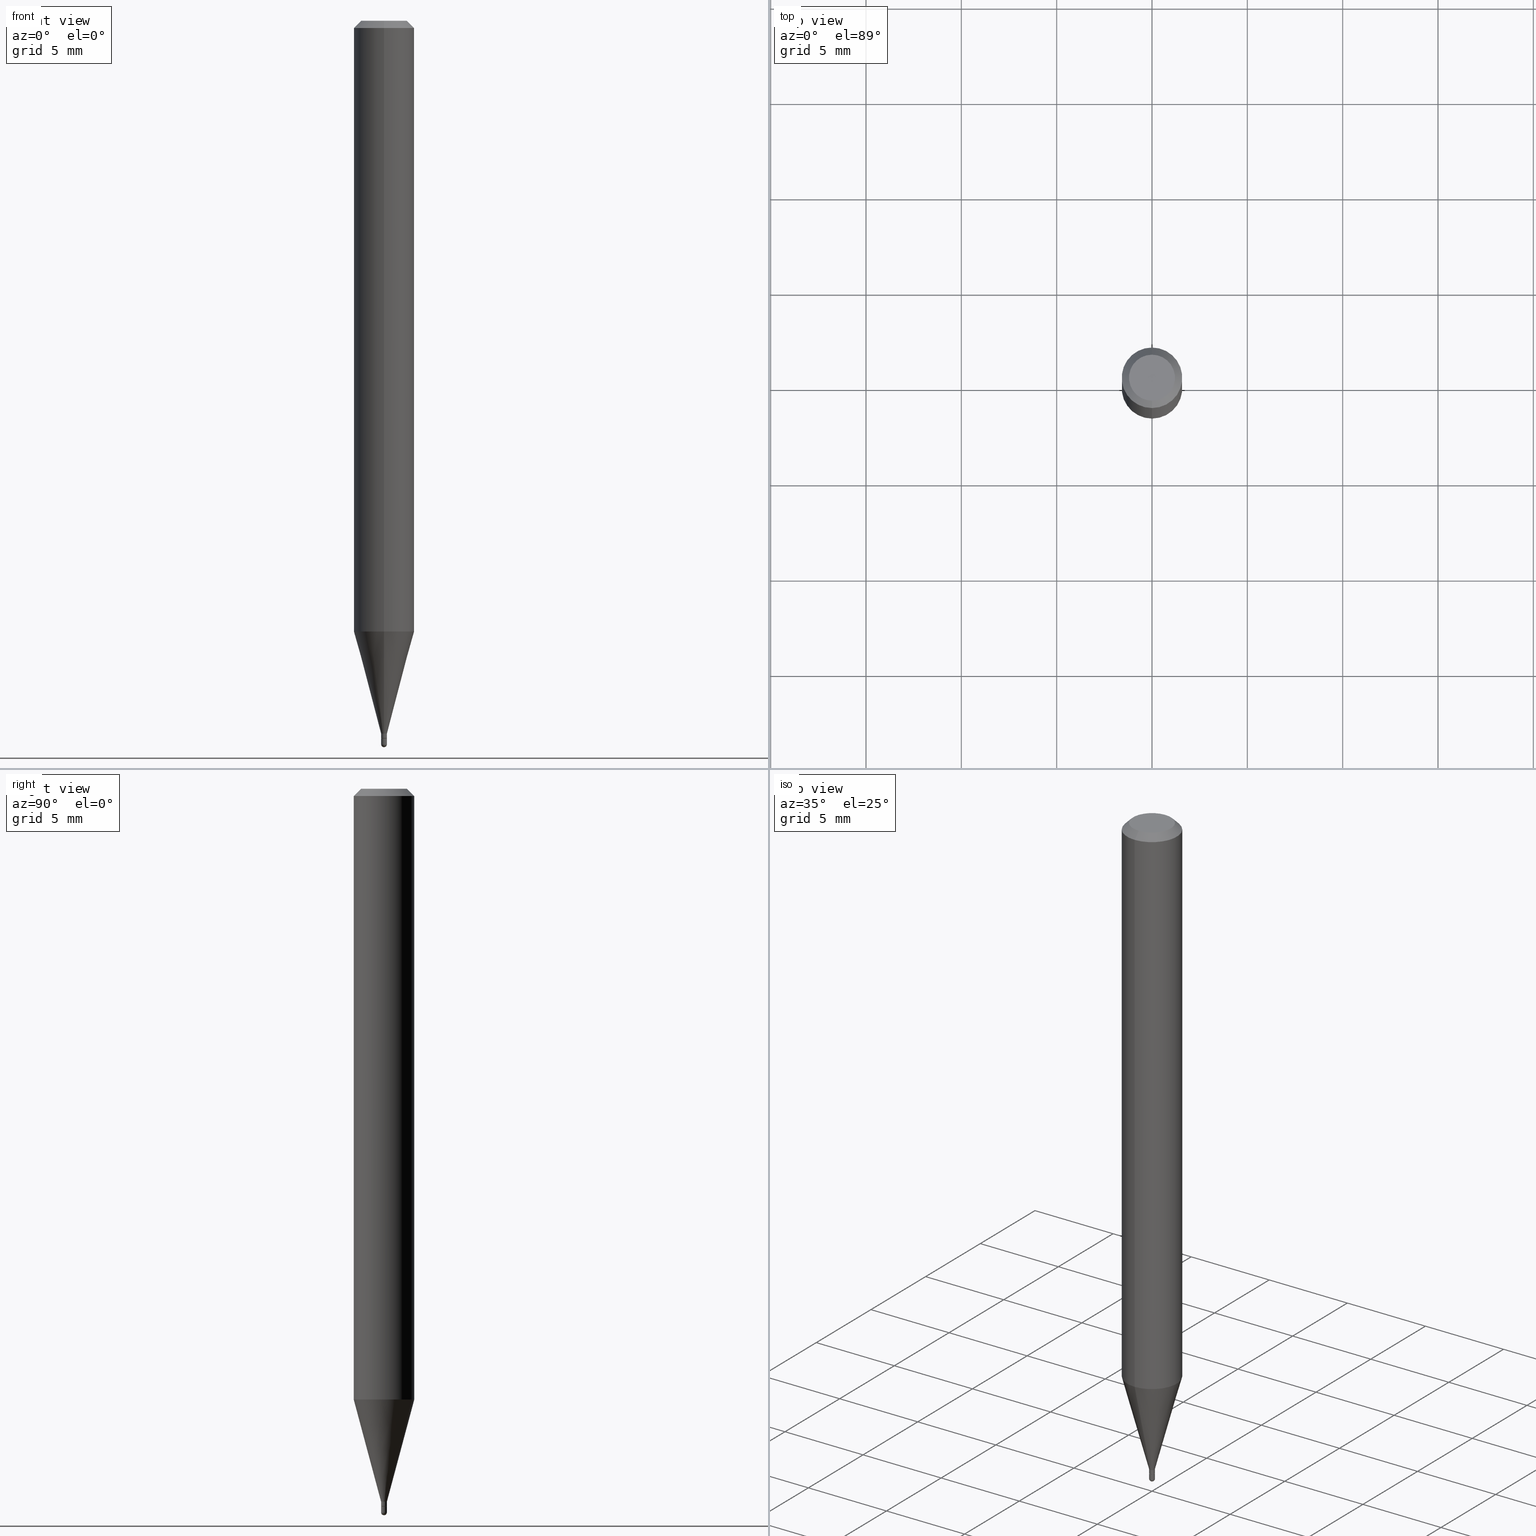
[diagram: canonical four-view strip — front | top / right | iso, engineering-drawing reading convention]
A machine part, canonical four-view strip (front | top / right | iso — engineering-drawing reading convention). The complete STEP part file that produces these views, byte-faithful:
ISO-10303-21;
HEADER;
FILE_DESCRIPTION (( 'STEP AP203' ),
    '1' );
FILE_NAME ('00747.STEP',
    '2024-03-07T18:11:06',
    ( '' ),
    ( '' ),
    'SwSTEP 2.0',
    'SolidWorks 2023',
    '' );
FILE_SCHEMA (( 'CONFIG_CONTROL_DESIGN' ));
ENDSEC;

DATA;
#1 = CARTESIAN_POINT ( 'NONE',  ( 3.624205907344433687E-29, -5.174345075382739787E-15, -1.482000000000000206 ) ) ;
#2 = APPROVAL_ROLE ( '' ) ;
#3 = ORIENTED_EDGE ( 'NONE', *, *, #464, .T. ) ;
#4 = AXIS2_PLACEMENT_3D ( 'NONE', #488, #289, #101 ) ;
#5 = COORDINATED_UNIVERSAL_TIME_OFFSET ( 5, 0, .BEHIND. ) ;
#6 = PRODUCT_DEFINITION ( 'UNKNOWN', '', #495, #451 ) ;
#7 = ORIENTED_EDGE ( 'NONE', *, *, #195, .T. ) ;
#8 = ORIENTED_EDGE ( 'NONE', *, *, #40, .F. ) ;
#9 = CARTESIAN_POINT ( 'NONE',  ( 3.840629472727447874E-16, 0.04749999999999999362, -1.747056831868805136E-16 ) ) ;
#10 = CARTESIAN_POINT ( 'NONE',  ( -4.189777606608105530E-17, -0.006000000000005062048, -1.471999999999999975 ) ) ;
#11 = DIRECTION ( 'NONE',  ( -2.445468806185136597E-29, 3.491481338843145583E-15, 1.000000000000000000 ) ) ;
#12 = CLOSED_SHELL ( 'NONE', ( #35, #309, #364, #476, #151, #376, #21, #169, #285, #188, #439, #294 ) ) ;
#13 = DIRECTION ( 'NONE',  ( 1.000000000000000000, -6.982962677686266711E-15, 4.876176775795935232E-29 ) ) ;
#14 = AXIS2_PLACEMENT_3D ( 'NONE', #51, #206, #147 ) ;
#15 = VERTEX_POINT ( 'NONE', #465 ) ;
#16 = EDGE_CURVE ( 'NONE', #353, #105, #60, .T. ) ;
#17 = CARTESIAN_POINT ( 'NONE',  ( 0.000000000000000000, 0.000000000000000000, 0.000000000000000000 ) ) ;
#18 = CARTESIAN_POINT ( 'NONE',  ( 2.433608869978675634E-16, 0.005999999999994782944, -1.471999999999999975 ) ) ;
#19 = CARTESIAN_POINT ( 'NONE',  ( 0.000000000000000000, 0.000000000000000000, 0.000000000000000000 ) ) ;
#20 = DIRECTION ( 'NONE',  ( -1.807323732225329745E-15, -0.2588190451025181305, 0.9659258262890689783 ) ) ;
#21 = ADVANCED_FACE ( 'NONE', ( #460 ), #458, .T. ) ;
#22 = FACE_OUTER_BOUND ( 'NONE', #235, .T. ) ;
#23 = EDGE_CURVE ( 'NONE', #15, #92, #410, .T. ) ;
#24 = AXIS2_PLACEMENT_3D ( 'NONE', #354, #436, #391 ) ;
#25 = DIRECTION ( 'NONE',  ( -7.105427357601001070E-15, -1.000000000000000000, 0.000000000000000000 ) ) ;
#26 = DIRECTION ( 'NONE',  ( -2.445483068383558096E-29, 3.491460914563251865E-15, 1.000000000000000000 ) ) ;
#27 = LOCAL_TIME ( 13, 11, 6.000000000000000000, #233 ) ;
#28 = CARTESIAN_POINT ( 'NONE',  ( 2.167013403574659442E-46, -3.093884679772774644E-32, -8.861289745126043681E-18 ) ) ;
#29 = FACE_OUTER_BOUND ( 'NONE', #93, .T. ) ;
#30 = LINE ( 'NONE', #387, #472 ) ;
#31 = DIRECTION ( 'NONE',  ( -2.445483068383558096E-29, 3.491460914563251865E-15, 1.000000000000000000 ) ) ;
#32 = EDGE_CURVE ( 'NONE', #194, #113, #72, .T. ) ;
#33 = CIRCLE ( 'NONE', #487, 0.04749999999999999362 ) ;
#34 = CARTESIAN_POINT ( 'NONE',  ( -0.006000000000000000992, 4.263256414560601820E-17, -2.951361054152944376E-31 ) ) ;
#35 = ADVANCED_FACE ( 'NONE', ( #22 ), #140, .T. ) ;
#36 = DIRECTION ( 'NONE',  ( -2.445468806185136877E-29, 3.491481338843145188E-15, 1.000000000000000000 ) ) ;
#37 = EDGE_LOOP ( 'NONE', ( #298, #245, #427, #412 ) ) ;
#38 = APPROVAL_DATE_TIME ( #168, #417 ) ;
#39 = FACE_OUTER_BOUND ( 'NONE', #362, .T. ) ;
#40 = EDGE_CURVE ( 'NONE', #92, #15, #356, .T. ) ;
#41 = COORDINATED_UNIVERSAL_TIME_OFFSET ( 5, 0, .BEHIND. ) ;
#42 = FACE_OUTER_BOUND ( 'NONE', #365, .T. ) ;
#43 = CALENDAR_DATE ( 2024, 7, 3 ) ;
#44 = ORIENTED_EDGE ( 'NONE', *, *, #433, .F. ) ;
#45 = ADVANCED_FACE ( 'NONE', ( #210 ), #287, .T. ) ;
#46 = AXIS2_PLACEMENT_3D ( 'NONE', #249, #377, #413 ) ;
#47 = AXIS2_PLACEMENT_3D ( 'NONE', #181, #363, #374 ) ;
#48 = ORIENTED_EDGE ( 'NONE', *, *, #286, .F. ) ;
#49 = AXIS2_PLACEMENT_3D ( 'NONE', #90, #135, #279 ) ;
#50 = CARTESIAN_POINT ( 'NONE',  ( 4.364351673553919652E-16, 0.06249999999999995143, -0.01500000000000022669 ) ) ;
#51 = CARTESIAN_POINT ( 'NONE',  ( 3.599751076660597576E-29, -5.139430466237107339E-15, -1.471999999999999975 ) ) ;
#52 = ORIENTED_EDGE ( 'NONE', *, *, #415, .T. ) ;
#53 = CARTESIAN_POINT ( 'NONE',  ( 4.085620730624171480E-17, 0.005499999999994825001, -1.482000000000000206 ) ) ;
#54 = PERSON_AND_ORGANIZATION_ROLE ( 'design_owner' ) ;
#55 = DIRECTION ( 'NONE',  ( -6.982962677686265922E-15, -1.000000000000000000, 3.491460914563251865E-15 ) ) ;
#56 = EDGE_CURVE ( 'NONE', #246, #396, #494, .T. ) ;
#57 = AXIS2_PLACEMENT_3D ( 'NONE', #177, #148, #55 ) ;
#58 = DIRECTION ( 'NONE',  ( -6.982962677686266711E-15, -1.000000000000000000, 3.491460914563251865E-15 ) ) ;
#59 = CIRCLE ( 'NONE', #103, 0.005499999999999999681 ) ;
#60 = LINE ( 'NONE', #336, #302 ) ;
#61 = DIRECTION ( 'NONE',  ( 1.839019923739599921E-15, 0.2588190451025249028, 0.9659258262890670910 ) ) ;
#62 = CARTESIAN_POINT ( 'NONE',  ( 3.653017296667086671E-29, -5.217007908311148520E-15, -1.494000000000000217 ) ) ;
#63 = EDGE_CURVE ( 'NONE', #481, #312, #447, .T. ) ;
#64 = DIRECTION ( 'NONE',  ( -2.445468806185136597E-29, 3.491481338843145583E-15, 1.000000000000000000 ) ) ;
#65 = CIRCLE ( 'NONE', #315, 0.006000000000000000992 ) ;
#66 = CARTESIAN_POINT ( 'NONE',  ( -4.364351673553912750E-16, -0.06250000000000005551, -0.01499999999999979128 ) ) ;
#67 = PRODUCT ( '00747', '00747', '', ( #262 ) ) ;
#68 = DIRECTION ( 'NONE',  ( 6.982962677686265922E-15, 1.000000000000000000, -3.491460914563251865E-15 ) ) ;
#69 = ORIENTED_EDGE ( 'NONE', *, *, #195, .F. ) ;
#70 = FACE_OUTER_BOUND ( 'NONE', #475, .T. ) ;
#71 = ORIENTED_EDGE ( 'NONE', *, *, #388, .F. ) ;
#72 = CIRCLE ( 'NONE', #157, 0.005499999999999999681 ) ;
#73 = CIRCLE ( 'NONE', #144, 0.006000000000000000992 ) ;
#74 = CC_DESIGN_APPROVAL ( #202, ( #371 ) ) ;
#75 = EDGE_CURVE ( 'NONE', #263, #146, #192, .T. ) ;
#76 = APPROVAL_STATUS ( 'not_yet_approved' ) ;
#77 = DATE_TIME_ROLE ( 'classification_date' ) ;
#78 = AXIS2_PLACEMENT_3D ( 'NONE', #19, #180, #493 ) ;
#79 = CONICAL_SURFACE ( 'NONE', #139, 0.005499999999999999681, 0.7853981633974739252 ) ;
#80 = CALENDAR_DATE ( 2024, 7, 3 ) ;
#81 = EDGE_LOOP ( 'NONE', ( #198, #3, #499, #330 ) ) ;
#82 = PERSON_AND_ORGANIZATION_ROLE ( 'classification_officer' ) ;
#83 = ADVANCED_FACE ( 'NONE', ( #107 ), #255, .F. ) ;
#84 = ORIENTED_EDGE ( 'NONE', *, *, #250, .T. ) ;
#85 = CARTESIAN_POINT ( 'NONE',  ( 3.907985046684174009E-17, 0.005499999999994825001, -1.482000000000000206 ) ) ;
#86 = UNCERTAINTY_MEASURE_WITH_UNIT (LENGTH_MEASURE( 1.000000000000000082E-05 ), #484, 'distance_accuracy_value', 'NONE');
#87 = ADVANCED_FACE ( 'NONE', ( #29 ), #102, .T. ) ;
#88 = CARTESIAN_POINT ( 'NONE',  ( -3.773273898774340269E-16, -0.04749999999999999362, 1.569831036966284047E-16 ) ) ;
#89 = EDGE_CURVE ( 'NONE', #438, #203, #358, .T. ) ;
#90 = CARTESIAN_POINT ( 'NONE',  ( 3.653017296667086671E-29, -5.217007908311148520E-15, -1.494000000000000217 ) ) ;
#91 = CARTESIAN_POINT ( 'NONE',  ( 0.000000000000000000, 0.000000000000000000, 0.000000000000000000 ) ) ;
#92 = VERTEX_POINT ( 'NONE', #326 ) ;
#93 = EDGE_LOOP ( 'NONE', ( #205, #223, #239, #500, #328 ) ) ;
#94 = AXIS2_PLACEMENT_3D ( 'NONE', #421, #186, #461 ) ;
#95 = AXIS2_PLACEMENT_3D ( 'NONE', #170, #325, #390 ) ;
#96 = CARTESIAN_POINT ( 'NONE',  ( 3.084094387756085363E-29, -4.403217978029919440E-15, -1.261139129372358836 ) ) ;
#97 = CC_DESIGN_DATE_AND_TIME_ASSIGNMENT ( #434, #191, ( #6 ) ) ;
#98 = ORIENTED_EDGE ( 'NONE', *, *, #511, .F. ) ;
#99 = CARTESIAN_POINT ( 'NONE',  ( 3.624205907344433687E-29, -5.174345075382739787E-15, -1.482000000000000206 ) ) ;
#100 = LINE ( 'NONE', #414, #152 ) ;
#101 = DIRECTION ( 'NONE',  ( 6.982962677686265922E-15, 1.000000000000000000, 0.000000000000000000 ) ) ;
#102 = CYLINDRICAL_SURFACE ( 'NONE', #78, 0.006000000000000000992 ) ;
#103 = AXIS2_PLACEMENT_3D ( 'NONE', #1, #207, #314 ) ;
#104 = FACE_OUTER_BOUND ( 'NONE', #142, .T. ) ;
#105 = VERTEX_POINT ( 'NONE', #486 ) ;
#106 = DIRECTION ( 'NONE',  ( -2.445483068383558096E-29, 3.491460914563251865E-15, 1.000000000000000000 ) ) ;
#107 = FACE_OUTER_BOUND ( 'NONE', #395, .T. ) ;
#108 = FACE_OUTER_BOUND ( 'NONE', #445, .T. ) ;
#109 = CARTESIAN_POINT ( 'NONE',  ( 4.440892098500935790E-16, 0.06249999999999995143, -0.01500000000000022669 ) ) ;
#110 = ORIENTED_EDGE ( 'NONE', *, *, #156, .F. ) ;
#111 = AXIS2_PLACEMENT_3D ( 'NONE', #306, #117, #265 ) ;
#112 = CARTESIAN_POINT ( 'NONE',  ( 4.189777606615392016E-17, 0.005999999999994755188, -1.494000000000000439 ) ) ;
#113 = VERTEX_POINT ( 'NONE', #124 ) ;
#114 = EDGE_CURVE ( 'NONE', #113, #194, #59, .T. ) ;
#115 = CARTESIAN_POINT ( 'NONE',  ( 4.440892098500625669E-16, 0.06250000000000000000, -2.182163071602032416E-16 ) ) ;
#116 = ORIENTED_EDGE ( 'NONE', *, *, #339, .T. ) ;
#117 = DIRECTION ( 'NONE',  ( -2.445483068383558096E-29, 3.491460914563251865E-15, 1.000000000000000000 ) ) ;
#118 = APPLICATION_CONTEXT ( 'configuration controlled 3d designs of mechanical parts and assemblies' ) ;
#119 = CONICAL_SURFACE ( 'NONE', #24, 0.06250000000000000000, 0.7853981633974483900 ) ;
#120 = CIRCLE ( 'NONE', #94, 0.06250000000000000000 ) ;
#121 = CARTESIAN_POINT ( 'NONE',  ( -4.287811248607203282E-16, -0.06250000000000005551, -0.01499999999999979128 ) ) ;
#122 = ORIENTED_EDGE ( 'NONE', *, *, #286, .T. ) ;
#123 = AXIS2_PLACEMENT_3D ( 'NONE', #96, #127, #280 ) ;
#124 = CARTESIAN_POINT ( 'NONE',  ( -3.840629472723821456E-17, -0.005500000000005173494, -1.482000000000000206 ) ) ;
#125 = CARTESIAN_POINT ( 'NONE',  ( 3.653530396440595201E-29, -5.216273120231661712E-15, -1.494000000000000439 ) ) ;
#126 = CALENDAR_DATE ( 2024, 7, 3 ) ;
#127 = DIRECTION ( 'NONE',  ( -2.445483068383558096E-29, 3.491460914563251865E-15, 1.000000000000000000 ) ) ;
#128 = FACE_OUTER_BOUND ( 'NONE', #355, .T. ) ;
#129 = CIRCLE ( 'NONE', #164, 0.005999999999999922930 ) ;
#130 = PERSON_AND_ORGANIZATION_ROLE ( 'creator' ) ;
#131 = ORIENTED_EDGE ( 'NONE', *, *, #388, .T. ) ;
#132 = CALENDAR_DATE ( 2024, 7, 3 ) ;
#133 = ORIENTED_EDGE ( 'NONE', *, *, #428, .T. ) ;
#134 = LINE ( 'NONE', #50, #165 ) ;
#135 = DIRECTION ( 'NONE',  ( -1.000000000000000000, 6.982962677686265922E-15, -4.883557194083112901E-29 ) ) ;
#136 = PLANE ( 'NONE',  #437 ) ;
#137 = CC_DESIGN_PERSON_AND_ORGANIZATION_ASSIGNMENT ( #477, #82, ( #371 ) ) ;
#138 = CIRCLE ( 'NONE', #47, 0.005999999999999922930 ) ;
#139 = AXIS2_PLACEMENT_3D ( 'NONE', #163, #316, #243 ) ;
#140 = CYLINDRICAL_SURFACE ( 'NONE', #430, 0.005999999999999923797 ) ;
#141 = FACE_OUTER_BOUND ( 'NONE', #408, .T. ) ;
#142 = EDGE_LOOP ( 'NONE', ( #284, #496, #52, #457 ) ) ;
#143 = DIRECTION ( 'NONE',  ( -2.445483068383558096E-29, 3.491460914563251865E-15, 1.000000000000000000 ) ) ;
#144 = AXIS2_PLACEMENT_3D ( 'NONE', #125, #441, #394 ) ;
#145 = CC_DESIGN_APPROVAL ( #417, ( #6 ) ) ;
#146 = VERTEX_POINT ( 'NONE', #66 ) ;
#147 = DIRECTION ( 'NONE',  ( -6.982962677686265922E-15, -1.000000000000000000, 0.000000000000000000 ) ) ;
#148 = DIRECTION ( 'NONE',  ( -2.445483068383558096E-29, 3.491460914563251865E-15, 1.000000000000000000 ) ) ;
#149 = LINE ( 'NONE', #296, #480 ) ;
#150 = CARTESIAN_POINT ( 'NONE',  ( 3.316907271900976096E-16, 0.04749999999999999362, -1.702750383143174802E-16 ) ) ;
#151 = ADVANCED_FACE ( 'NONE', ( #222 ), #431, .T. ) ;
#152 = VECTOR ( 'NONE', #172, 39.37007874015748143 ) ;
#153 = CIRCLE ( 'NONE', #123, 0.06250000000000000000 ) ;
#154 = DIRECTION ( 'NONE',  ( 1.000000000000000000, -6.982962677686331397E-15, 0.000000000000000000 ) ) ;
#155 = CARTESIAN_POINT ( 'NONE',  ( 0.006000000000000000125, -5.216273120231660134E-15, -1.482000000000000206 ) ) ;
#156 = EDGE_CURVE ( 'NONE', #146, #263, #120, .T. ) ;
#157 = AXIS2_PLACEMENT_3D ( 'NONE', #99, #106, #329 ) ;
#158 = COORDINATED_UNIVERSAL_TIME_OFFSET ( 5, 0, .BEHIND. ) ;
#159 = DATE_AND_TIME ( #126, #335 ) ;
#160 = CC_DESIGN_PERSON_AND_ORGANIZATION_ASSIGNMENT ( #201, #130, ( #495 ) ) ;
#161 = ORIENTED_EDGE ( 'NONE', *, *, #214, .F. ) ;
#162 = CLOSED_SHELL ( 'NONE', ( #45, #455, #83, #471, #87 ) ) ;
#163 = CARTESIAN_POINT ( 'NONE',  ( 3.624205907344433687E-29, -5.174345075382739787E-15, -1.482000000000000206 ) ) ;
#164 = AXIS2_PLACEMENT_3D ( 'NONE', #485, #241, #211 ) ;
#165 = VECTOR ( 'NONE', #166, 39.37007874015748143 ) ;
#166 = DIRECTION ( 'NONE',  ( 4.937700262164548042E-15, 0.7071067811865451302, -0.7071067811865499042 ) ) ;
#167 = FACE_OUTER_BOUND ( 'NONE', #37, .T. ) ;
#168 = DATE_AND_TIME ( #80, #292 ) ;
#169 = ADVANCED_FACE ( 'NONE', ( #108 ), #119, .T. ) ;
#170 = CARTESIAN_POINT ( 'NONE',  ( 3.084094387756085363E-29, -4.403217978029919440E-15, -1.261139129372358836 ) ) ;
#171 = DIRECTION ( 'NONE',  ( -6.982962677686265922E-15, -1.000000000000000000, 3.491460914563251865E-15 ) ) ;
#172 = DIRECTION ( 'NONE',  ( -2.445468806185136877E-29, 3.491481338843145188E-15, 1.000000000000000000 ) ) ;
#173 = AXIS2_PLACEMENT_3D ( 'NONE', #366, #11, #492 ) ;
#174 = APPROVAL_PERSON_ORGANIZATION ( #474, #417, #230 ) ;
#175 = DIRECTION ( 'NONE',  ( -6.982962677686265922E-15, -1.000000000000000000, 0.000000000000000000 ) ) ;
#176 = DIRECTION ( 'NONE',  ( 6.982962677686265922E-15, 1.000000000000000000, -3.483106191921935554E-15 ) ) ;
#177 = CARTESIAN_POINT ( 'NONE',  ( 0.000000000000000000, 0.000000000000000000, 0.000000000000000000 ) ) ;
#178 = EDGE_LOOP ( 'NONE', ( #491, #84, #161, #257, #234 ) ) ;
#179 = CARTESIAN_POINT ( 'NONE',  ( -3.840629472723821456E-17, -0.005500000000005173494, -1.482000000000000206 ) ) ;
#180 = DIRECTION ( 'NONE',  ( -2.445468806185136597E-29, 3.491481338843145583E-15, 1.000000000000000000 ) ) ;
#181 = CARTESIAN_POINT ( 'NONE',  ( 3.599751076660597576E-29, -5.139430466237107339E-15, -1.471999999999999975 ) ) ;
#182 = AXIS2_PLACEMENT_3D ( 'NONE', #409, #367, #58 ) ;
#183 = ORIENTED_EDGE ( 'NONE', *, *, #63, .F. ) ;
#184 = CIRCLE ( 'NONE', #95, 0.06250000000000000000 ) ;
#185 = LOCAL_TIME ( 13, 11, 6.000000000000000000, #5 ) ;
#186 = DIRECTION ( 'NONE',  ( -2.445483068383558096E-29, 3.491460914563251865E-15, 1.000000000000000000 ) ) ;
#187 = PRODUCT_RELATED_PRODUCT_CATEGORY ( 'detail', '', ( #67 ) ) ;
#188 = ADVANCED_FACE ( 'NONE', ( #42 ), #136, .F. ) ;
#189 = PERSON ( 'UNSPECIFIED', 'UNSPECIFIED', 'UNSPECIFIED', ('UNSPECIFIED'), ('UNSPECIFIED'), ('UNSPECIFIED') ) ;
#190 = AXIS2_PLACEMENT_3D ( 'NONE', #368, #288, #176 ) ;
#191 = DATE_TIME_ROLE ( 'creation_date' ) ;
#192 = CIRCLE ( 'NONE', #448, 0.06250000000000000000 ) ;
#193 = DATE_AND_TIME ( #132, #399 ) ;
#194 = VERTEX_POINT ( 'NONE', #53 ) ;
#195 = EDGE_CURVE ( 'NONE', #113, #15, #251, .T. ) ;
#196 = APPROVAL_DATE_TIME ( #159, #237 ) ;
#197 = ORIENTED_EDGE ( 'NONE', *, *, #382, .T. ) ;
#198 = ORIENTED_EDGE ( 'NONE', *, *, #382, .F. ) ;
#199 = AXIS2_PLACEMENT_3D ( 'NONE', #490, #420, #215 ) ;
#200 = CONICAL_SURFACE ( 'NONE', #190, 0.06250000000000000000, 0.7853981633974483900 ) ;
#201 = PERSON_AND_ORGANIZATION ( #189, #359 ) ;
#202 = APPROVAL ( #321, 'UNSPECIFIED' ) ;
#203 = VERTEX_POINT ( 'NONE', #208 ) ;
#204 = CYLINDRICAL_SURFACE ( 'NONE', #304, 0.06250000000000000000 ) ;
#205 = ORIENTED_EDGE ( 'NONE', *, *, #250, .F. ) ;
#206 = DIRECTION ( 'NONE',  ( -2.445483068383558096E-29, 3.491460914563251865E-15, 1.000000000000000000 ) ) ;
#207 = DIRECTION ( 'NONE',  ( -2.445483068383558096E-29, 3.491460914563251865E-15, 1.000000000000000000 ) ) ;
#208 = CARTESIAN_POINT ( 'NONE',  ( 0.006000000000000000992, -5.237222008264720543E-15, -1.494000000000000439 ) ) ;
#209 = APPLICATION_PROTOCOL_DEFINITION ( 'international standard', 'config_control_design', 1994, #400 ) ;
#210 = FACE_OUTER_BOUND ( 'NONE', #178, .T. ) ;
#211 = DIRECTION ( 'NONE',  ( -6.982962677686265922E-15, -1.000000000000000000, 0.000000000000000000 ) ) ;
#212 = DIRECTION ( 'NONE',  ( -6.982962677686265922E-15, -1.000000000000000000, 3.491460914563251865E-15 ) ) ;
#213 = CARTESIAN_POINT ( 'NONE',  ( 3.668224602575339527E-31, -5.237191371844881323E-17, -0.01500000000000000812 ) ) ;
#214 = EDGE_CURVE ( 'NONE', #254, #505, #267, .T. ) ;
#215 = DIRECTION ( 'NONE',  ( -6.982962677686265922E-15, -1.000000000000000000, 0.000000000000000000 ) ) ;
#216 = DIRECTION ( 'NONE',  ( -2.445468806185136597E-29, 3.491481338843145583E-15, 1.000000000000000000 ) ) ;
#217 =( NAMED_UNIT ( * ) SI_UNIT ( $, .STERADIAN. ) SOLID_ANGLE_UNIT ( ) );
#218 = DIRECTION ( 'NONE',  ( -1.000000000000000000, 7.105427357601001070E-15, -4.926315508542082329E-29 ) ) ;
#219 = ORIENTED_EDGE ( 'NONE', *, *, #63, .T. ) ;
#220 = DIRECTION ( 'NONE',  ( -6.982962677686265922E-15, -1.000000000000000000, 3.483106191921935554E-15 ) ) ;
#221 = EDGE_CURVE ( 'NONE', #92, #353, #30, .T. ) ;
#222 = FACE_OUTER_BOUND ( 'NONE', #320, .T. ) ;
#223 = ORIENTED_EDGE ( 'NONE', *, *, #307, .T. ) ;
#224 = CARTESIAN_POINT ( 'NONE',  ( -4.364351673553916201E-16, -0.06250000000000000000, 2.182163071602032416E-16 ) ) ;
#225 = EDGE_LOOP ( 'NONE', ( #219, #122 ) ) ;
#226 = VECTOR ( 'NONE', #20, 39.37007874015748143 ) ;
#227 = SPHERICAL_SURFACE ( 'NONE', #268, 0.005999999999999941144 ) ;
#228 = CC_DESIGN_PERSON_AND_ORGANIZATION_ASSIGNMENT ( #510, #435, ( #495 ) ) ;
#229 = PERSON_AND_ORGANIZATION ( #189, #359 ) ;
#230 = APPROVAL_ROLE ( '' ) ;
#231 = CC_DESIGN_PERSON_AND_ORGANIZATION_ASSIGNMENT ( #446, #54, ( #67 ) ) ;
#232 = VECTOR ( 'NONE', #261, 39.37007874015748143 ) ;
#233 = COORDINATED_UNIVERSAL_TIME_OFFSET ( 5, 0, .BEHIND. ) ;
#234 = ORIENTED_EDGE ( 'NONE', *, *, #433, .T. ) ;
#235 = EDGE_LOOP ( 'NONE', ( #275, #338, #340, #71 ) ) ;
#236 = CARTESIAN_POINT ( 'NONE',  ( -0.006000000000000000125, -5.152691668052995253E-15, -1.482000000000000206 ) ) ;
#237 = APPROVAL ( #483, 'UNSPECIFIED' ) ;
#238 = SHAPE_DEFINITION_REPRESENTATION ( #502, #373 ) ;
#239 = ORIENTED_EDGE ( 'NONE', *, *, #89, .T. ) ;
#240 = DIRECTION ( 'NONE',  ( 6.982962677686265922E-15, 1.000000000000000000, 0.000000000000000000 ) ) ;
#241 = DIRECTION ( 'NONE',  ( -2.445483068383558096E-29, 3.491460914563251865E-15, 1.000000000000000000 ) ) ;
#242 = AXIS2_PLACEMENT_3D ( 'NONE', #150, #345, #68 ) ;
#243 = DIRECTION ( 'NONE',  ( -6.982962677686265922E-15, -1.000000000000000000, 0.000000000000000000 ) ) ;
#244 =( GEOMETRIC_REPRESENTATION_CONTEXT ( 3 ) GLOBAL_UNCERTAINTY_ASSIGNED_CONTEXT ( ( #86 ) ) GLOBAL_UNIT_ASSIGNED_CONTEXT ( ( #484, #253, #217 ) ) REPRESENTATION_CONTEXT ( 'NONE', 'WORKASPACE' ) );
#245 = ORIENTED_EDGE ( 'NONE', *, *, #402, .T. ) ;
#246 = VERTEX_POINT ( 'NONE', #112 ) ;
#247 = DIRECTION ( 'NONE',  ( -2.445468806185136597E-29, 3.491481338843145583E-15, 1.000000000000000000 ) ) ;
#248 = ORIENTED_EDGE ( 'NONE', *, *, #507, .T. ) ;
#249 = CARTESIAN_POINT ( 'NONE',  ( 3.653530396440595201E-29, -5.216273120231661712E-15, -1.494000000000000439 ) ) ;
#250 = EDGE_CURVE ( 'NONE', #396, #505, #462, .T. ) ;
#251 = LINE ( 'NONE', #179, #378 ) ;
#252 = ORIENTED_EDGE ( 'NONE', *, *, #264, .F. ) ;
#253 =( NAMED_UNIT ( * ) PLANE_ANGLE_UNIT ( ) SI_UNIT ( $, .RADIAN. ) );
#254 = VERTEX_POINT ( 'NONE', #155 ) ;
#255 = PLANE ( 'NONE',  #384 ) ;
#256 = LINE ( 'NONE', #121, #509 ) ;
#257 = ORIENTED_EDGE ( 'NONE', *, *, #318, .F. ) ;
#258 = AXIS2_PLACEMENT_3D ( 'NONE', #91, #361, #508 ) ;
#259 = CARTESIAN_POINT ( 'NONE',  ( 0.000000000000000000, 0.000000000000000000, 0.000000000000000000 ) ) ;
#260 = ORIENTED_EDGE ( 'NONE', *, *, #16, .T. ) ;
#261 = DIRECTION ( 'NONE',  ( -2.445483068383558096E-29, 3.491460914563251865E-15, 1.000000000000000000 ) ) ;
#262 = MECHANICAL_CONTEXT ( 'NONE', #118, 'mechanical' ) ;
#263 = VERTEX_POINT ( 'NONE', #109 ) ;
#264 = EDGE_CURVE ( 'NONE', #312, #146, #256, .T. ) ;
#265 = DIRECTION ( 'NONE',  ( -6.982962677686265922E-15, -1.000000000000000000, 0.000000000000000000 ) ) ;
#266 = AXIS2_PLACEMENT_3D ( 'NONE', #17, #64, #13 ) ;
#267 = CIRCLE ( 'NONE', #173, 0.006000000000000000125 ) ;
#268 = AXIS2_PLACEMENT_3D ( 'NONE', #397, #440, #240 ) ;
#269 = PLANE ( 'NONE',  #242 ) ;
#270 = EDGE_CURVE ( 'NONE', #429, #146, #501, .T. ) ;
#271 = LINE ( 'NONE', #407, #226 ) ;
#272 = PERSON_AND_ORGANIZATION ( #189, #359 ) ;
#273 = APPROVAL_ROLE ( '' ) ;
#274 = ORIENTED_EDGE ( 'NONE', *, *, #40, .T. ) ;
#275 = ORIENTED_EDGE ( 'NONE', *, *, #23, .T. ) ;
#276 = SPHERICAL_SURFACE ( 'NONE', #49, 0.005999999999999941144 ) ;
#277 = APPROVAL_DATE_TIME ( #317, #202 ) ;
#278 = VERTEX_POINT ( 'NONE', #470 ) ;
#279 = DIRECTION ( 'NONE',  ( 6.982962677686265922E-15, 1.000000000000000000, 0.000000000000000000 ) ) ;
#280 = DIRECTION ( 'NONE',  ( -6.982962677686265922E-15, -1.000000000000000000, 4.370956789862821150E-15 ) ) ;
#281 = VECTOR ( 'NONE', #31, 39.37007874015748143 ) ;
#282 = CARTESIAN_POINT ( 'NONE',  ( 3.624205907344433687E-29, -5.174345075382739787E-15, -1.482000000000000206 ) ) ;
#283 = FACE_OUTER_BOUND ( 'NONE', #383, .T. ) ;
#284 = ORIENTED_EDGE ( 'NONE', *, *, #16, .F. ) ;
#285 = ADVANCED_FACE ( 'NONE', ( #305 ), #269, .F. ) ;
#286 = EDGE_CURVE ( 'NONE', #312, #481, #33, .T. ) ;
#287 = CYLINDRICAL_SURFACE ( 'NONE', #266, 0.006000000000000000992 ) ;
#288 = DIRECTION ( 'NONE',  ( 2.445483068383558096E-29, -3.491460914563251865E-15, -1.000000000000000000 ) ) ;
#289 = DIRECTION ( 'NONE',  ( 1.000000000000000000, -6.982962677686265922E-15, 4.883557194083112340E-29 ) ) ;
#290 = AXIS2_PLACEMENT_3D ( 'NONE', #453, #143, #175 ) ;
#291 = CIRCLE ( 'NONE', #456, 0.005999999999999941144 ) ;
#292 = LOCAL_TIME ( 13, 11, 6.000000000000000000, #41 ) ;
#293 = CARTESIAN_POINT ( 'NONE',  ( 3.653530396440595201E-29, -5.216273120231661712E-15, -1.494000000000000439 ) ) ;
#294 = ADVANCED_FACE ( 'NONE', ( #342 ), #467, .T. ) ;
#295 = ORIENTED_EDGE ( 'NONE', *, *, #498, .T. ) ;
#296 = CARTESIAN_POINT ( 'NONE',  ( -4.189777606611706556E-17, -0.005999999999999923797, 2.094876548737924365E-17 ) ) ;
#297 = DIRECTION ( 'NONE',  ( -2.445483068383558096E-29, 3.491460914563251865E-15, 1.000000000000000000 ) ) ;
#298 = ORIENTED_EDGE ( 'NONE', *, *, #428, .F. ) ;
#299 = DIMENSIONAL_EXPONENTS ( 1.000000000000000000, 0.000000000000000000, 0.000000000000000000, 0.000000000000000000, 0.000000000000000000, 0.000000000000000000, 0.000000000000000000 ) ;
#300 = DIRECTION ( 'NONE',  ( -6.982962677686265922E-15, -1.000000000000000000, 3.491460914563251471E-15 ) ) ;
#301 = DIRECTION ( 'NONE',  ( -6.982962677686266711E-15, -1.000000000000000000, 3.491460914563251865E-15 ) ) ;
#302 = VECTOR ( 'NONE', #61, 39.37007874015748143 ) ;
#303 = CIRCLE ( 'NONE', #4, 0.005999999999999941144 ) ;
#304 = AXIS2_PLACEMENT_3D ( 'NONE', #444, #313, #171 ) ;
#305 = FACE_OUTER_BOUND ( 'NONE', #225, .T. ) ;
#306 = CARTESIAN_POINT ( 'NONE',  ( 3.624205907344433687E-29, -5.174345075382739787E-15, -1.482000000000000206 ) ) ;
#307 = EDGE_CURVE ( 'NONE', #396, #438, #65, .T. ) ;
#308 = CC_DESIGN_APPROVAL ( #237, ( #495 ) ) ;
#309 = ADVANCED_FACE ( 'NONE', ( #70 ), #369, .T. ) ;
#310 = PERSON_AND_ORGANIZATION_ROLE ( 'creator' ) ;
#311 = CALENDAR_DATE ( 2024, 7, 3 ) ;
#312 = VERTEX_POINT ( 'NONE', #88 ) ;
#313 = DIRECTION ( 'NONE',  ( -2.445483068383558096E-29, 3.491460914563251865E-15, 1.000000000000000000 ) ) ;
#314 = DIRECTION ( 'NONE',  ( -6.982962677686265922E-15, -1.000000000000000000, 0.000000000000000000 ) ) ;
#315 = AXIS2_PLACEMENT_3D ( 'NONE', #347, #426, #154 ) ;
#316 = DIRECTION ( 'NONE',  ( -2.445483068383558096E-29, 3.491460914563251865E-15, 1.000000000000000000 ) ) ;
#317 = DATE_AND_TIME ( #43, #27 ) ;
#318 = EDGE_CURVE ( 'NONE', #203, #254, #100, .T. ) ;
#319 =( LENGTH_UNIT ( ) NAMED_UNIT ( * ) SI_UNIT ( $, .METRE. ) );
#320 = EDGE_LOOP ( 'NONE', ( #116, #260, #419, #416 ) ) ;
#321 = APPROVAL_STATUS ( 'not_yet_approved' ) ;
#322 = EDGE_LOOP ( 'NONE', ( #422, #274, #131, #343 ) ) ;
#323 = LENGTH_MEASURE_WITH_UNIT ( LENGTH_MEASURE( 0.02539999999999999897 ), #319 );
#324 = CARTESIAN_POINT ( 'NONE',  ( 3.624184770766373010E-29, -5.174375344165542471E-15, -1.482000000000000206 ) ) ;
#325 = DIRECTION ( 'NONE',  ( -2.445483068383558096E-29, 3.491460914563251865E-15, 1.000000000000000000 ) ) ;
#326 = CARTESIAN_POINT ( 'NONE',  ( 4.263256414564155392E-17, 0.005999999999994732637, -1.481500000000000261 ) ) ;
#327 = VECTOR ( 'NONE', #36, 39.37007874015748143 ) ;
#328 = ORIENTED_EDGE ( 'NONE', *, *, #333, .F. ) ;
#329 = DIRECTION ( 'NONE',  ( -6.982962677686265922E-15, -1.000000000000000000, 0.000000000000000000 ) ) ;
#330 = ORIENTED_EDGE ( 'NONE', *, *, #75, .F. ) ;
#331 = DIRECTION ( 'NONE',  ( -4.937700262164674260E-15, -0.7071067811865632269, 0.7071067811865319186 ) ) ;
#332 = ORIENTED_EDGE ( 'NONE', *, *, #402, .F. ) ;
#333 = EDGE_CURVE ( 'NONE', #505, #254, #466, .T. ) ;
#334 = CONICAL_SURFACE ( 'NONE', #14, 0.005999999999999922930, 0.2617993877991502405 ) ;
#335 = LOCAL_TIME ( 13, 11, 6.000000000000000000, #349 ) ;
#336 = CARTESIAN_POINT ( 'NONE',  ( 4.263256414564145531E-17, 0.005999999999994783811, -1.471999999999999975 ) ) ;
#337 = CARTESIAN_POINT ( 'NONE',  ( 3.599751076660597576E-29, -5.139430466237107339E-15, -1.471999999999999975 ) ) ;
#338 = ORIENTED_EDGE ( 'NONE', *, *, #221, .T. ) ;
#339 = EDGE_CURVE ( 'NONE', #463, #353, #129, .T. ) ;
#340 = ORIENTED_EDGE ( 'NONE', *, *, #339, .F. ) ;
#341 = LINE ( 'NONE', #115, #232 ) ;
#342 = FACE_OUTER_BOUND ( 'NONE', #322, .T. ) ;
#343 = ORIENTED_EDGE ( 'NONE', *, *, #344, .F. ) ;
#344 = EDGE_CURVE ( 'NONE', #353, #463, #138, .T. ) ;
#345 = DIRECTION ( 'NONE',  ( 2.445483068383557816E-29, -3.491460914563251865E-15, -1.000000000000000000 ) ) ;
#346 = CARTESIAN_POINT ( 'NONE',  ( -0.006000000000000000992, -5.152691668052995253E-15, -1.494000000000000439 ) ) ;
#347 = CARTESIAN_POINT ( 'NONE',  ( 3.653530396440595201E-29, -5.216273120231661712E-15, -1.494000000000000439 ) ) ;
#348 = AXIS2_PLACEMENT_3D ( 'NONE', #324, #247, #406 ) ;
#349 = COORDINATED_UNIVERSAL_TIME_OFFSET ( 5, 0, .BEHIND. ) ;
#350 = VECTOR ( 'NONE', #357, 39.37007874015748143 ) ;
#351 = PERSON_AND_ORGANIZATION ( #189, #359 ) ;
#352 = ORIENTED_EDGE ( 'NONE', *, *, #498, .F. ) ;
#353 = VERTEX_POINT ( 'NONE', #18 ) ;
#354 = CARTESIAN_POINT ( 'NONE',  ( 3.668224602575339527E-31, -5.237191371844881323E-17, -0.01500000000000000812 ) ) ;
#355 = EDGE_LOOP ( 'NONE', ( #352, #452, #7, #8 ) ) ;
#356 = CIRCLE ( 'NONE', #199, 0.005999999999999923797 ) ;
#357 = DIRECTION ( 'NONE',  ( 5.024295867788190974E-15, 0.7071067811865681119, 0.7071067811865270336 ) ) ;
#358 = CIRCLE ( 'NONE', #398, 0.006000000000000000992 ) ;
#359 = ORGANIZATION ( 'UNSPECIFIED', 'UNSPECIFIED', '' ) ;
#360 = ORIENTED_EDGE ( 'NONE', *, *, #32, .F. ) ;
#361 = DIRECTION ( 'NONE',  ( 0.000000000000000000, 0.000000000000000000, 1.000000000000000000 ) ) ;
#362 = EDGE_LOOP ( 'NONE', ( #332, #133, #44, #403 ) ) ;
#363 = DIRECTION ( 'NONE',  ( -2.445483068383558096E-29, 3.491460914563251865E-15, 1.000000000000000000 ) ) ;
#364 = ADVANCED_FACE ( 'NONE', ( #141 ), #200, .T. ) ;
#365 = EDGE_LOOP ( 'NONE', ( #392, #360 ) ) ;
#366 = CARTESIAN_POINT ( 'NONE',  ( 3.624184770766373010E-29, -5.174375344165542471E-15, -1.482000000000000206 ) ) ;
#367 = DIRECTION ( 'NONE',  ( -2.445483068383558096E-29, 3.491460914563251865E-15, 1.000000000000000000 ) ) ;
#368 = CARTESIAN_POINT ( 'NONE',  ( 3.668224602575339527E-31, -5.237191371844881323E-17, -0.01500000000000000812 ) ) ;
#369 = CONICAL_SURFACE ( 'NONE', #111, 0.005499999999999999681, 0.7853981633974739252 ) ;
#370 = ORIENTED_EDGE ( 'NONE', *, *, #333, .T. ) ;
#371 = SECURITY_CLASSIFICATION ( '', '', #442 ) ;
#372 = DIRECTION ( 'NONE',  ( -2.445483068383558096E-29, 3.491460914563251865E-15, 1.000000000000000000 ) ) ;
#373 = ADVANCED_BREP_SHAPE_REPRESENTATION ( '00747', ( #404, #393, #258 ), #244 ) ;
#374 = DIRECTION ( 'NONE',  ( -6.982962677686265922E-15, -1.000000000000000000, 0.000000000000000000 ) ) ;
#375 = DIRECTION ( 'NONE',  ( -1.000000000000000000, 6.982962677686265922E-15, -4.876176775795935793E-29 ) ) ;
#376 = ADVANCED_FACE ( 'NONE', ( #104 ), #334, .T. ) ;
#377 = DIRECTION ( 'NONE',  ( -2.445468806185136597E-29, 3.491481338843145583E-15, 1.000000000000000000 ) ) ;
#378 = VECTOR ( 'NONE', #331, 39.37007874015748143 ) ;
#379 = DIRECTION ( 'NONE',  ( 2.438088387897960049E-29, -3.491481338843145188E-15, -1.000000000000000000 ) ) ;
#380 = DIRECTION ( 'NONE',  ( -4.851104656540964275E-15, -0.7071067811865500152, -0.7071067811865450192 ) ) ;
#381 = ORIENTED_EDGE ( 'NONE', *, *, #23, .F. ) ;
#382 = EDGE_CURVE ( 'NONE', #105, #263, #341, .T. ) ;
#383 = EDGE_LOOP ( 'NONE', ( #248, #197, #110, #468 ) ) ;
#384 = AXIS2_PLACEMENT_3D ( 'NONE', #454, #379, #375 ) ;
#385 = DIRECTION ( 'NONE',  ( 1.000000000000000000, -6.982962677686331397E-15, 0.000000000000000000 ) ) ;
#386 = APPLICATION_PROTOCOL_DEFINITION ( 'international standard', 'config_control_design', 1994, #118 ) ;
#387 = CARTESIAN_POINT ( 'NONE',  ( 4.263256414560546353E-17, 0.005999999999999923797, -2.094876548737924365E-17 ) ) ;
#388 = EDGE_CURVE ( 'NONE', #15, #463, #149, .T. ) ;
#389 = AXIS2_PLACEMENT_3D ( 'NONE', #337, #26, #497 ) ;
#390 = DIRECTION ( 'NONE',  ( -6.982962677686265922E-15, -1.000000000000000000, 4.370956789862821150E-15 ) ) ;
#391 = DIRECTION ( 'NONE',  ( 6.982962677686265922E-15, 1.000000000000000000, -3.483106191921935554E-15 ) ) ;
#392 = ORIENTED_EDGE ( 'NONE', *, *, #114, .F. ) ;
#393 = MANIFOLD_SOLID_BREP ( 'Body-Move/Copy2[2]', #12 ) ;
#394 = DIRECTION ( 'NONE',  ( 1.000000000000000000, -6.982962677686331397E-15, 0.000000000000000000 ) ) ;
#395 = EDGE_LOOP ( 'NONE', ( #443, #370 ) ) ;
#396 = VERTEX_POINT ( 'NONE', #346 ) ;
#397 = CARTESIAN_POINT ( 'NONE',  ( 3.653017296667086671E-29, -5.217007908311148520E-15, -1.494000000000000217 ) ) ;
#398 = AXIS2_PLACEMENT_3D ( 'NONE', #293, #216, #385 ) ;
#399 = LOCAL_TIME ( 13, 11, 6.000000000000000000, #158 ) ;
#400 = APPLICATION_CONTEXT ( 'configuration controlled 3d designs of mechanical parts and assemblies' ) ;
#401 = CARTESIAN_POINT ( 'NONE',  ( -4.263256414556926838E-17, -0.006000000000005186948, -1.494000000000000439 ) ) ;
#402 = EDGE_CURVE ( 'NONE', #278, #438, #291, .T. ) ;
#403 = ORIENTED_EDGE ( 'NONE', *, *, #89, .F. ) ;
#404 = MANIFOLD_SOLID_BREP ( 'Body-Move/Copy2[1]', #162 ) ;
#405 = ORIENTED_EDGE ( 'NONE', *, *, #156, .T. ) ;
#406 = DIRECTION ( 'NONE',  ( 1.000000000000000000, -6.982962677686332186E-15, 0.000000000000000000 ) ) ;
#407 = CARTESIAN_POINT ( 'NONE',  ( -4.189777606608105530E-17, -0.006000000000005062048, -1.471999999999999975 ) ) ;
#408 = EDGE_LOOP ( 'NONE', ( #48, #469, #405, #98 ) ) ;
#409 = CARTESIAN_POINT ( 'NONE',  ( 2.167013403574659442E-46, -3.093884679772774644E-32, -8.861289745126043681E-18 ) ) ;
#410 = CIRCLE ( 'NONE', #290, 0.005999999999999923797 ) ;
#411 = CARTESIAN_POINT ( 'NONE',  ( -4.364351673553608052E-16, -0.06250000000000439926, -1.261139129372358614 ) ) ;
#412 = ORIENTED_EDGE ( 'NONE', *, *, #56, .F. ) ;
#413 = DIRECTION ( 'NONE',  ( 1.000000000000000000, -6.982962677686331397E-15, 0.000000000000000000 ) ) ;
#414 = CARTESIAN_POINT ( 'NONE',  ( 0.006000000000000000992, -4.189777606611760791E-17, 2.925706065477561668E-31 ) ) ;
#415 = EDGE_CURVE ( 'NONE', #463, #429, #271, .T. ) ;
#416 = ORIENTED_EDGE ( 'NONE', *, *, #415, .F. ) ;
#417 = APPROVAL ( #76, 'UNSPECIFIED' ) ;
#418 = DIRECTION ( 'NONE',  ( -2.445483068383558096E-29, 3.491460914563251865E-15, 1.000000000000000000 ) ) ;
#419 = ORIENTED_EDGE ( 'NONE', *, *, #507, .F. ) ;
#420 = DIRECTION ( 'NONE',  ( -2.445483068383558096E-29, 3.491460914563251865E-15, 1.000000000000000000 ) ) ;
#421 = CARTESIAN_POINT ( 'NONE',  ( 3.668224602575339527E-31, -5.237191371844881323E-17, -0.01500000000000000812 ) ) ;
#422 = ORIENTED_EDGE ( 'NONE', *, *, #221, .F. ) ;
#423 = CC_DESIGN_DATE_AND_TIME_ASSIGNMENT ( #193, #77, ( #371 ) ) ;
#424 = DIRECTION ( 'NONE',  ( -2.445483068383558096E-29, 3.491460914563251865E-15, 1.000000000000000000 ) ) ;
#425 = DIRECTION ( 'NONE',  ( -2.445483068383558096E-29, 3.491460914563251865E-15, 1.000000000000000000 ) ) ;
#426 = DIRECTION ( 'NONE',  ( -2.445468806185136597E-29, 3.491481338843145583E-15, 1.000000000000000000 ) ) ;
#427 = ORIENTED_EDGE ( 'NONE', *, *, #307, .F. ) ;
#428 = EDGE_CURVE ( 'NONE', #278, #246, #303, .T. ) ;
#429 = VERTEX_POINT ( 'NONE', #411 ) ;
#430 = AXIS2_PLACEMENT_3D ( 'NONE', #489, #418, #300 ) ;
#431 = CONICAL_SURFACE ( 'NONE', #389, 0.005999999999999922930, 0.2617993877991502405 ) ;
#432 = APPROVAL_PERSON_ORGANIZATION ( #351, #202, #273 ) ;
#433 = EDGE_CURVE ( 'NONE', #203, #246, #73, .T. ) ;
#434 = DATE_AND_TIME ( #311, #185 ) ;
#435 = PERSON_AND_ORGANIZATION_ROLE ( 'design_supplier' ) ;
#436 = DIRECTION ( 'NONE',  ( 2.445483068383558096E-29, -3.491460914563251865E-15, -1.000000000000000000 ) ) ;
#437 = AXIS2_PLACEMENT_3D ( 'NONE', #282, #459, #212 ) ;
#438 = VERTEX_POINT ( 'NONE', #401 ) ;
#439 = ADVANCED_FACE ( 'NONE', ( #128 ), #79, .T. ) ;
#440 = DIRECTION ( 'NONE',  ( -1.000000000000000000, 6.982962677686265922E-15, -4.883557194083112901E-29 ) ) ;
#441 = DIRECTION ( 'NONE',  ( -2.445468806185136597E-29, 3.491481338843145583E-15, 1.000000000000000000 ) ) ;
#442 = SECURITY_CLASSIFICATION_LEVEL ( 'unclassified' ) ;
#443 = ORIENTED_EDGE ( 'NONE', *, *, #214, .T. ) ;
#444 = CARTESIAN_POINT ( 'NONE',  ( 0.000000000000000000, 0.000000000000000000, 0.000000000000000000 ) ) ;
#445 = EDGE_LOOP ( 'NONE', ( #252, #183, #482, #478 ) ) ;
#446 = PERSON_AND_ORGANIZATION ( #189, #359 ) ;
#447 = CIRCLE ( 'NONE', #182, 0.04749999999999999362 ) ;
#448 = AXIS2_PLACEMENT_3D ( 'NONE', #213, #372, #220 ) ;
#449 = CC_DESIGN_SECURITY_CLASSIFICATION ( #371, ( #495 ) ) ;
#450 = ORIENTED_EDGE ( 'NONE', *, *, #114, .T. ) ;
#451 = DESIGN_CONTEXT ( 'detailed design', #400, 'design' ) ;
#452 = ORIENTED_EDGE ( 'NONE', *, *, #32, .T. ) ;
#453 = CARTESIAN_POINT ( 'NONE',  ( 3.622983165810241741E-29, -5.172599344925458756E-15, -1.481500000000000261 ) ) ;
#454 = CARTESIAN_POINT ( 'NONE',  ( 4.189777606615384004E-17, 0.005999999999994825445, -1.482000000000000206 ) ) ;
#455 = ADVANCED_FACE ( 'NONE', ( #167 ), #276, .T. ) ;
#456 = AXIS2_PLACEMENT_3D ( 'NONE', #62, #218, #25 ) ;
#457 = ORIENTED_EDGE ( 'NONE', *, *, #464, .F. ) ;
#458 = CYLINDRICAL_SURFACE ( 'NONE', #57, 0.06250000000000000000 ) ;
#459 = DIRECTION ( 'NONE',  ( -2.445483068383557816E-29, 3.491460914563251865E-15, 1.000000000000000000 ) ) ;
#460 = FACE_OUTER_BOUND ( 'NONE', #81, .T. ) ;
#461 = DIRECTION ( 'NONE',  ( -6.982962677686265922E-15, -1.000000000000000000, 3.483106191921935554E-15 ) ) ;
#462 = LINE ( 'NONE', #34, #327 ) ;
#463 = VERTEX_POINT ( 'NONE', #10 ) ;
#464 = EDGE_CURVE ( 'NONE', #105, #429, #184, .T. ) ;
#465 = CARTESIAN_POINT ( 'NONE',  ( -4.189777606608096285E-17, -0.006000000000005115824, -1.481500000000000261 ) ) ;
#466 = CIRCLE ( 'NONE', #348, 0.006000000000000000125 ) ;
#467 = CYLINDRICAL_SURFACE ( 'NONE', #503, 0.005999999999999923797 ) ;
#468 = ORIENTED_EDGE ( 'NONE', *, *, #270, .F. ) ;
#469 = ORIENTED_EDGE ( 'NONE', *, *, #264, .T. ) ;
#470 = CARTESIAN_POINT ( 'NONE',  ( 3.667946659390950910E-29, -5.237589402304463158E-15, -1.500000000000000222 ) ) ;
#471 = ADVANCED_FACE ( 'NONE', ( #39 ), #227, .T. ) ;
#472 = VECTOR ( 'NONE', #297, 39.37007874015748143 ) ;
#473 = APPROVAL_PERSON_ORGANIZATION ( #229, #237, #2 ) ;
#474 = PERSON_AND_ORGANIZATION ( #189, #359 ) ;
#475 = EDGE_LOOP ( 'NONE', ( #450, #295, #381, #69 ) ) ;
#476 = ADVANCED_FACE ( 'NONE', ( #283 ), #204, .T. ) ;
#477 = PERSON_AND_ORGANIZATION ( #189, #359 ) ;
#478 = ORIENTED_EDGE ( 'NONE', *, *, #75, .T. ) ;
#479 = LINE ( 'NONE', #85, #350 ) ;
#480 = VECTOR ( 'NONE', #425, 39.37007874015748143 ) ;
#481 = VERTEX_POINT ( 'NONE', #9 ) ;
#482 = ORIENTED_EDGE ( 'NONE', *, *, #511, .T. ) ;
#483 = APPROVAL_STATUS ( 'not_yet_approved' ) ;
#484 =( CONVERSION_BASED_UNIT ( 'INCH', #323 ) LENGTH_UNIT ( ) NAMED_UNIT ( #299 ) );
#485 = CARTESIAN_POINT ( 'NONE',  ( 3.599751076660597576E-29, -5.139430466237107339E-15, -1.471999999999999975 ) ) ;
#486 = CARTESIAN_POINT ( 'NONE',  ( 4.440892098500932831E-16, 0.06249999999999558686, -1.261139129372359058 ) ) ;
#487 = AXIS2_PLACEMENT_3D ( 'NONE', #28, #506, #301 ) ;
#488 = CARTESIAN_POINT ( 'NONE',  ( 3.653017296667086671E-29, -5.217007908311148520E-15, -1.494000000000000217 ) ) ;
#489 = CARTESIAN_POINT ( 'NONE',  ( 0.000000000000000000, 0.000000000000000000, 0.000000000000000000 ) ) ;
#490 = CARTESIAN_POINT ( 'NONE',  ( 3.622983165810241741E-29, -5.172599344925458756E-15, -1.481500000000000261 ) ) ;
#491 = ORIENTED_EDGE ( 'NONE', *, *, #56, .T. ) ;
#492 = DIRECTION ( 'NONE',  ( 1.000000000000000000, -6.982962677686332186E-15, 0.000000000000000000 ) ) ;
#493 = DIRECTION ( 'NONE',  ( 1.000000000000000000, -6.982962677686266711E-15, 4.876176775795935232E-29 ) ) ;
#494 = CIRCLE ( 'NONE', #46, 0.006000000000000000992 ) ;
#495 = PRODUCT_DEFINITION_FORMATION_WITH_SPECIFIED_SOURCE ( 'ANY', '', #67, .NOT_KNOWN. ) ;
#496 = ORIENTED_EDGE ( 'NONE', *, *, #344, .T. ) ;
#497 = DIRECTION ( 'NONE',  ( -6.982962677686265922E-15, -1.000000000000000000, 0.000000000000000000 ) ) ;
#498 = EDGE_CURVE ( 'NONE', #194, #92, #479, .T. ) ;
#499 = ORIENTED_EDGE ( 'NONE', *, *, #270, .T. ) ;
#500 = ORIENTED_EDGE ( 'NONE', *, *, #318, .T. ) ;
#501 = LINE ( 'NONE', #224, #281 ) ;
#502 = PRODUCT_DEFINITION_SHAPE ( 'NONE', 'NONE',  #6 ) ;
#503 = AXIS2_PLACEMENT_3D ( 'NONE', #259, #424, #504 ) ;
#504 = DIRECTION ( 'NONE',  ( -6.982962677686265922E-15, -1.000000000000000000, 3.491460914563251471E-15 ) ) ;
#505 = VERTEX_POINT ( 'NONE', #236 ) ;
#506 = DIRECTION ( 'NONE',  ( -2.445483068383558096E-29, 3.491460914563251865E-15, 1.000000000000000000 ) ) ;
#507 = EDGE_CURVE ( 'NONE', #429, #105, #153, .T. ) ;
#508 = DIRECTION ( 'NONE',  ( 1.000000000000000000, 0.000000000000000000, 0.000000000000000000 ) ) ;
#509 = VECTOR ( 'NONE', #380, 39.37007874015748143 ) ;
#510 = PERSON_AND_ORGANIZATION ( #189, #359 ) ;
#511 = EDGE_CURVE ( 'NONE', #481, #263, #134, .T. ) ;
#512 = CC_DESIGN_PERSON_AND_ORGANIZATION_ASSIGNMENT ( #272, #310, ( #6 ) ) ;
ENDSEC;
END-ISO-10303-21;
